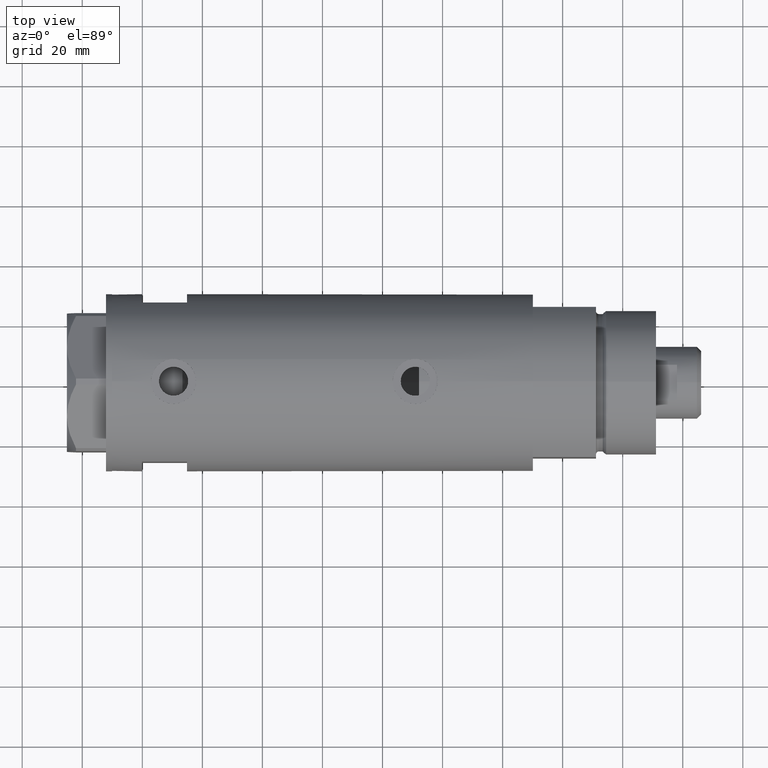
[diagram: clean part render]
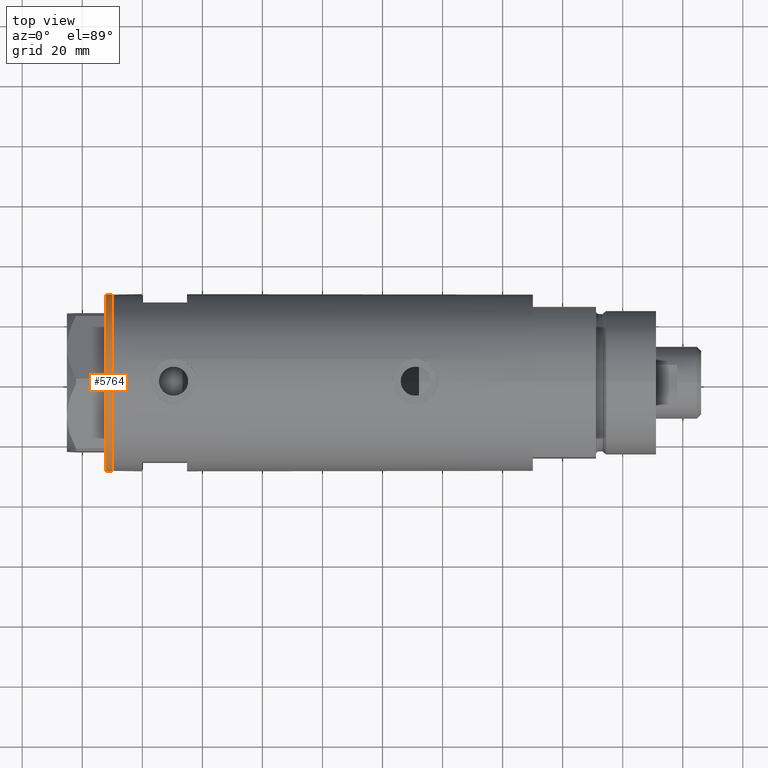
[diagram: same view with one face highlighted and labeled with its STEP entity id]
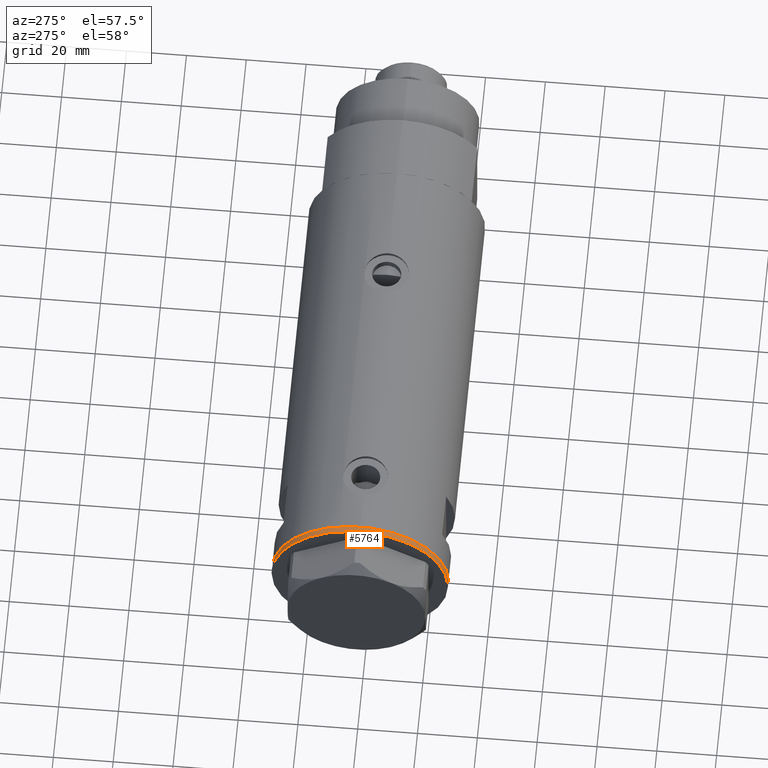
[diagram: same view with one face highlighted and labeled with its STEP entity id]
A machine part, top view. The second image highlights one B-rep face of the part: STEP entity #5764.
A second angle (auxiliary view) of the same face is appended — the face is thin or edge-on in the first view.
In plain terms, the highlighted cylindrical surface (partial cylindrical patch) has radius 29.5 mm, axis along (-1, -0, 0).
Its self-contained STEP definition (entity closure, byte-faithful):
#267 = VERTEX_POINT ( 'NONE', #3224 ) ;
#362 = CIRCLE ( 'NONE', #4481, 29.50000000000000355 ) ;
#632 = CARTESIAN_POINT ( 'NONE',  ( 29.50000000000000355, 0.000000000000000000, 0.000000000000000000 ) ) ;
#851 = VECTOR ( 'NONE', #2839, 1000.000000000000000 ) ;
#1039 = VERTEX_POINT ( 'NONE', #4663 ) ;
#1080 = CARTESIAN_POINT ( 'NONE',  ( 0.000000000000000000, 0.000000000000000000, -2.000000000000000000 ) ) ;
#1245 = CARTESIAN_POINT ( 'NONE',  ( -29.50000000000000355, 3.612708057484692393E-15, -2.000000000000000000 ) ) ;
#1270 = CARTESIAN_POINT ( 'NONE',  ( 0.000000000000000000, 0.000000000000000000, 0.000000000000000000 ) ) ;
#1368 = CARTESIAN_POINT ( 'NONE',  ( 0.000000000000000000, 0.000000000000000000, -2.000000000000000000 ) ) ;
#1445 = EDGE_CURVE ( 'NONE', #267, #1039, #5815, .T. ) ;
#1617 = AXIS2_PLACEMENT_3D ( 'NONE', #1368, #1775, #2690 ) ;
#1775 = DIRECTION ( 'NONE',  ( 0.000000000000000000, 0.000000000000000000, -1.000000000000000000 ) ) ;
#1872 = DIRECTION ( 'NONE',  ( -0.000000000000000000, -0.000000000000000000, 1.000000000000000000 ) ) ;
#2171 = CIRCLE ( 'NONE', #1617, 29.50000000000000355 ) ;
#2590 = DIRECTION ( 'NONE',  ( 0.000000000000000000, 0.000000000000000000, -1.000000000000000000 ) ) ;
#2690 = DIRECTION ( 'NONE',  ( -1.000000000000000000, 0.000000000000000000, 0.000000000000000000 ) ) ;
#2839 = DIRECTION ( 'NONE',  ( -0.000000000000000000, -0.000000000000000000, 1.000000000000000000 ) ) ;
#2878 = EDGE_CURVE ( 'NONE', #4272, #5500, #3793, .T. ) ;
#2992 = ORIENTED_EDGE ( 'NONE', *, *, #1445, .F. ) ;
#3113 = EDGE_CURVE ( 'NONE', #4272, #267, #2171, .T. ) ;
#3224 = CARTESIAN_POINT ( 'NONE',  ( -29.50000000000000355, 3.612708057484692393E-15, -2.000000000000000000 ) ) ;
#3286 = EDGE_CURVE ( 'NONE', #5500, #1039, #362, .T. ) ;
#3353 = CYLINDRICAL_SURFACE ( 'NONE', #3729, 29.50000000000000355 ) ;
#3356 = ORIENTED_EDGE ( 'NONE', *, *, #3113, .F. ) ;
#3729 = AXIS2_PLACEMENT_3D ( 'NONE', #1080, #1872, #4723 ) ;
#3793 = LINE ( 'NONE', #5227, #851 ) ;
#3899 = DIRECTION ( 'NONE',  ( -1.000000000000000000, 0.000000000000000000, 0.000000000000000000 ) ) ;
#4074 = CARTESIAN_POINT ( 'NONE',  ( 29.50000000000000355, 0.000000000000000000, -2.000000000000000000 ) ) ;
#4272 = VERTEX_POINT ( 'NONE', #4074 ) ;
#4449 = ORIENTED_EDGE ( 'NONE', *, *, #3286, .T. ) ;
#4481 = AXIS2_PLACEMENT_3D ( 'NONE', #1270, #2590, #3899 ) ;
#4663 = CARTESIAN_POINT ( 'NONE',  ( -29.50000000000000355, 3.612708057484692393E-15, 0.000000000000000000 ) ) ;
#4723 = DIRECTION ( 'NONE',  ( 1.000000000000000000, 0.000000000000000000, 0.000000000000000000 ) ) ;
#5091 = FACE_OUTER_BOUND ( 'NONE', #5831, .T. ) ;
#5197 = VECTOR ( 'NONE', #5404, 1000.000000000000000 ) ;
#5227 = CARTESIAN_POINT ( 'NONE',  ( 29.50000000000000355, 0.000000000000000000, -2.000000000000000000 ) ) ;
#5404 = DIRECTION ( 'NONE',  ( -0.000000000000000000, -0.000000000000000000, 1.000000000000000000 ) ) ;
#5479 = ORIENTED_EDGE ( 'NONE', *, *, #2878, .T. ) ;
#5500 = VERTEX_POINT ( 'NONE', #632 ) ;
#5764 = ADVANCED_FACE ( 'NONE', ( #5091 ), #3353, .T. ) ;
#5815 = LINE ( 'NONE', #1245, #5197 ) ;
#5831 = EDGE_LOOP ( 'NONE', ( #2992, #3356, #5479, #4449 ) ) ;